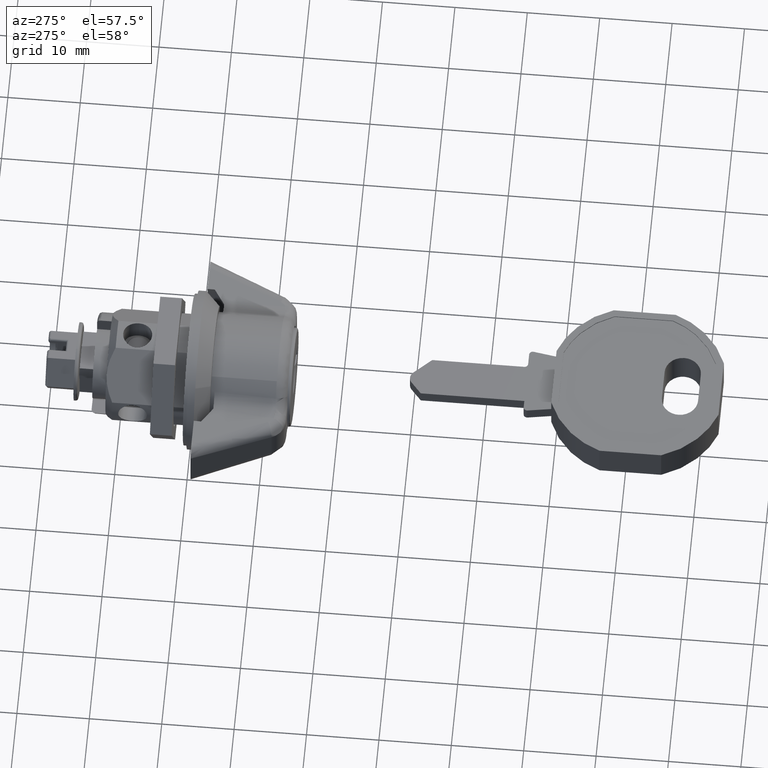
[diagram: clean part render]
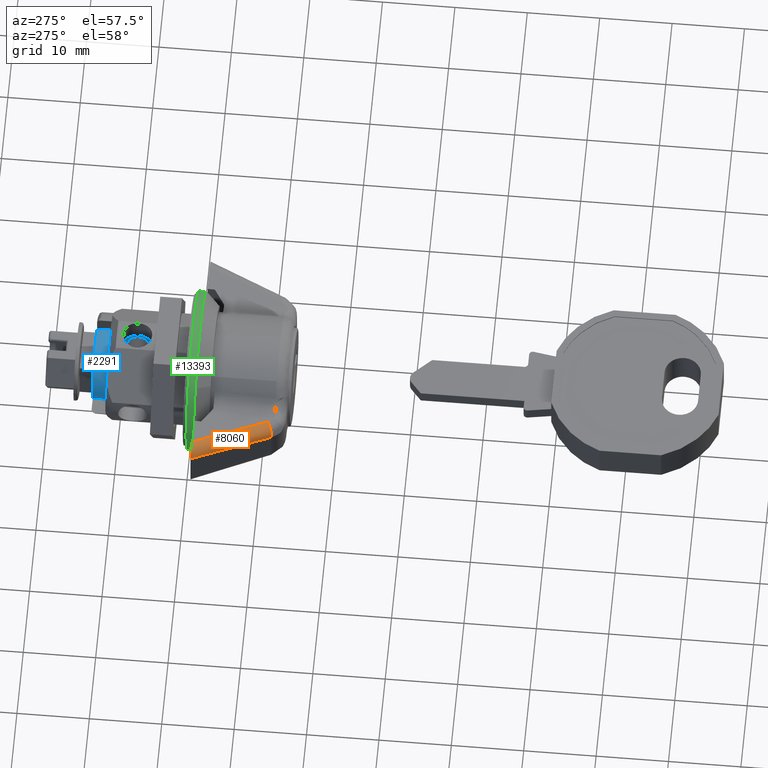
[diagram: same view with three faces highlighted in distinct colors, each labeled with its STEP entity id]
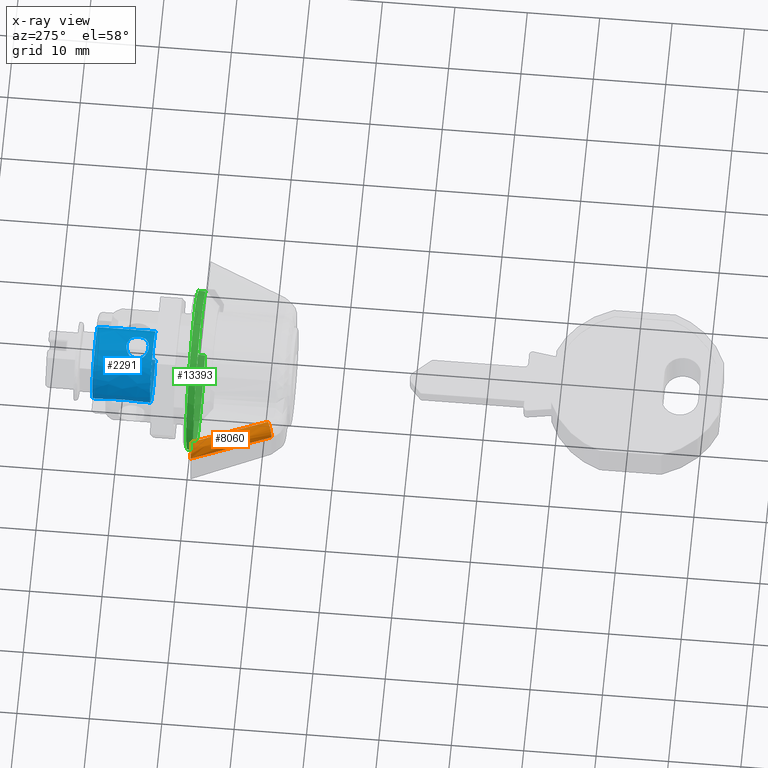
[diagram: x-ray of the same camera — body ghosted, the three highlighted faces saturated]
A machine part, auxiliary view with three faces highlighted in distinct colors.
The next image is the same camera in x-ray (body ghosted, the three faces saturated) — at least one of them is partly hidden behind the body in this view.
Their STEP definitions:

[orange] entity #8060 — the highlighted face is a freeform B-spline surface patch.
#7979=CARTESIAN_POINT('',(-11.183665235683840,9.821166666246279,3.595886481305010));
#7980=VERTEX_POINT('',#7979);
#7981=CARTESIAN_POINT('',(-11.762083190561020,11.286777674290761,1.997144758670520));
#7982=VERTEX_POINT('',#7981);
#7983=CARTESIAN_POINT('',(-11.183665235683840,9.821166666246279,3.595886481305010));
#7984=CARTESIAN_POINT('',(-11.266741171007620,10.011137923160099,3.592826560587628));
#7985=CARTESIAN_POINT('',(-11.383710787275071,10.283995523881890,3.529131590233779));
#7986=CARTESIAN_POINT('',(-11.520116949203180,10.612636578893840,3.339596484802511));
#7987=CARTESIAN_POINT('',(-11.607927909332520,10.830018300909940,3.153349985861394));
#7988=CARTESIAN_POINT('',(-11.684241216827830,11.026724536256680,2.905542830950694));
#7989=CARTESIAN_POINT('',(-11.754130439448740,11.220525311628670,2.527914172347614));
#7990=CARTESIAN_POINT('',(-11.769068784447080,11.283952099144599,2.204365520496538));
#7991=CARTESIAN_POINT('',(-11.762083190561020,11.286777674290761,1.997144758670520));
#7992=B_SPLINE_CURVE_WITH_KNOTS('',3,(#7983,#7984,#7985,#7986,#7987,#7988,#7989,#7990,#7991),.UNSPECIFIED.,.F.,.U.,(4,1,1,1,1,1,4),(0.000000158202903,0.621971021835694,0.894088538189162,1.205091068800267,1.516032652936379,1.865912749101538,2.487883612734395),.UNSPECIFIED.);
#7993=EDGE_CURVE('',#7980,#7982,#7992,.T.);
#8016=CARTESIAN_POINT('',(-11.425749113943910,9.641638852134159,3.584862003369446));
#8017=CARTESIAN_POINT('',(-0.116520896383075,14.594482535604500,4.033640912819842));
#8018=CARTESIAN_POINT('',(-12.133517106246288,11.253568368795866,3.630931069450107));
#8019=CARTESIAN_POINT('',(-0.824288888685452,16.206412052266195,4.079709978900501));
#8020=CARTESIAN_POINT('',(-12.025934632838862,11.166996654419442,1.875281330422414));
#8021=CARTESIAN_POINT('',(-0.716706415278030,16.119840337889769,2.324060239872809));
#8029=(BOUNDED_SURFACE()B_SPLINE_SURFACE(1,2,((#8016,#8018,#8020),(#8017,#8019,#8021)),.UNSPECIFIED.,.F.,.F.,.U.)B_SPLINE_SURFACE_WITH_KNOTS((2,2),(3,3),(0.0,12.354380030553290),(0.0,2.832323646402191),.UNSPECIFIED.)GEOMETRIC_REPRESENTATION_ITEM()RATIONAL_B_SPLINE_SURFACE(((1.0,0.671118480831794,0.996048137487845),(1.0,0.671118480831794,0.996048137487845)))REPRESENTATION_ITEM('')SURFACE());
#8030=CARTESIAN_POINT('',(-1.000000047497460,16.000000759959601,2.424211561412980));
#8031=VERTEX_POINT('',#8030);
#8032=CARTESIAN_POINT('',(-1.000000047497450,14.281073286891360,4.000000189989891));
#8033=VERTEX_POINT('',#8032);
#8034=CARTESIAN_POINT('',(-1.000000047497460,16.000000759959601,2.424211561412980));
#8035=CARTESIAN_POINT('',(-1.000000047497452,16.000000759959459,4.000000189989893));
#8036=CARTESIAN_POINT('',(-1.000000047497452,14.281073286891360,4.000000189989895));
#8044=(BOUNDED_CURVE()B_SPLINE_CURVE(2,(#8034,#8035,#8036),.UNSPECIFIED.,.F.,.U.)CURVE()GEOMETRIC_REPRESENTATION_ITEM()QUASI_UNIFORM_CURVE()RATIONAL_B_SPLINE_CURVE((1.0,0.712708436266373,1.0))REPRESENTATION_ITEM(''));
#8045=EDGE_CURVE('',#8031,#8033,#8044,.T.);
#8046=ORIENTED_EDGE('',*,*,#8045,.F.);
#8047=CARTESIAN_POINT('',(-11.762083190561020,11.286777674290761,1.997144758670520));
#8048=CARTESIAN_POINT('',(-1.000000047497460,16.000000759959601,2.424211561412980));
#8049=QUASI_UNIFORM_CURVE('',1,(#8047,#8048),.UNSPECIFIED.,.F.,.U.);
#8050=EDGE_CURVE('',#7982,#8031,#8049,.T.);
#8051=ORIENTED_EDGE('',*,*,#8050,.F.);
#8052=ORIENTED_EDGE('',*,*,#7993,.F.);
#8053=CARTESIAN_POINT('',(-1.000000047497450,14.281073286891360,4.000000189989891));
#8054=CARTESIAN_POINT('',(-11.183665235683840,9.821166666246279,3.595886481305010));
#8055=QUASI_UNIFORM_CURVE('',1,(#8053,#8054),.UNSPECIFIED.,.F.,.U.);
#8056=EDGE_CURVE('',#8033,#7980,#8055,.T.);
#8057=ORIENTED_EDGE('',*,*,#8056,.F.);
#8058=EDGE_LOOP('',(#8046,#8051,#8052,#8057));
#8059=FACE_OUTER_BOUND('',#8058,.T.);
#8060=ADVANCED_FACE('',(#8059),#8029,.T.);

[blue] entity #2291 — the highlighted face is a freeform B-spline surface patch.
#1260=CARTESIAN_POINT('',(6.306306991833534,-0.749260837802013,4.867671208664538));
#1261=VERTEX_POINT('',#1260);
#1267=CARTESIAN_POINT('',(6.752965717756890,-1.471606265276386,4.700000000000000));
#1268=VERTEX_POINT('',#1267);
#1269=CARTESIAN_POINT('',(6.752965717756890,-1.471606265276386,4.700000000000000));
#1270=CARTESIAN_POINT('',(6.658988565765238,-1.375251441683344,4.730169191837251));
#1271=CARTESIAN_POINT('',(6.577387759292848,-1.270290086274373,4.759769838746648));
#1272=CARTESIAN_POINT('',(6.470486094922504,-1.101357364556316,4.800623423266615));
#1273=CARTESIAN_POINT('',(6.437486076383927,-1.043099641148262,4.813661638506937));
#1274=CARTESIAN_POINT('',(6.376719369867122,-0.922618643012104,4.838198819667565));
#1275=CARTESIAN_POINT('',(6.349005869118376,-0.860396968225078,4.849679521529549));
#1276=CARTESIAN_POINT('',(6.318223410626710,-0.781487361113824,4.862628099728564));
#1277=CARTESIAN_POINT('',(6.312168504258932,-0.765406229973195,4.865185791075035));
#1278=CARTESIAN_POINT('',(6.306306991833534,-0.749260837802013,4.867671208664538));
#1279=B_SPLINE_CURVE_WITH_KNOTS('',3,(#1269,#1270,#1271,#1272,#1273,#1274,#1275,#1276,#1277,#1278),.UNSPECIFIED.,.F.,.U.,(4,2,2,2,4),(0.0,0.125000000000000,0.187500000000000,0.250000000000000,0.265917130112417),.UNSPECIFIED.);
#1280=EDGE_CURVE('',#1268,#1261,#1279,.T.);
#1282=CARTESIAN_POINT('',(8.647034722851529,-1.471606265276386,4.700000000000000));
#1283=VERTEX_POINT('',#1282);
#1294=CARTESIAN_POINT('',(9.093693513346835,0.749261314784638,4.867671135328719));
#1295=VERTEX_POINT('',#1294);
#1296=CARTESIAN_POINT('',(9.093693513346835,0.749261314784638,4.867671135328719));
#1297=CARTESIAN_POINT('',(9.133863759482995,0.638613998182504,4.884704430850198));
#1298=CARTESIAN_POINT('',(9.164951025658560,0.524948590913087,4.898343300071508));
#1299=CARTESIAN_POINT('',(9.193230657995320,0.374745352996912,4.910835513892305));
#1300=CARTESIAN_POINT('',(9.198773049228747,0.341041545232073,4.913294424818516));
#1301=CARTESIAN_POINT('',(9.208315691703506,0.273109538108605,4.917538314888221));
#1302=CARTESIAN_POINT('',(9.212310623673323,0.238873441533852,4.919320939319647));
#1303=CARTESIAN_POINT('',(9.221838580833150,0.136561839845545,4.923578560741460));
#1304=CARTESIAN_POINT('',(9.224982641803319,0.068487116221322,4.924991482365425));
#1305=CARTESIAN_POINT('',(9.225032794052428,-0.135347320387991,4.925014066964783));
#1306=CARTESIAN_POINT('',(9.212644922722733,-0.270720449740360,4.919414066283357));
#1307=CARTESIAN_POINT('',(9.174818085669852,-0.472985851736623,4.902701280421549));
#1308=CARTESIAN_POINT('',(9.159111052579924,-0.539481012879765,4.895802378511427));
#1309=CARTESIAN_POINT('',(9.121938844129128,-0.669661004700747,4.879700368412383));
#1310=CARTESIAN_POINT('',(9.100442222864901,-0.733518067374230,4.870482710529963));
#1311=CARTESIAN_POINT('',(9.051660202474839,-0.858815032659847,4.849957539497495));
#1312=CARTESIAN_POINT('',(9.024376211684537,-0.920255338606349,4.838649319562661));
#1313=CARTESIAN_POINT('',(8.963826649955060,-1.040685557501927,4.814184401792642));
#1314=CARTESIAN_POINT('',(8.930459827519439,-1.099779163540217,4.800991078759340));
#1315=CARTESIAN_POINT('',(8.822911755218746,-1.269985968318285,4.759872539932546));
#1316=CARTESIAN_POINT('',(8.740976742339687,-1.375287716975266,4.730158020439851));
#1317=CARTESIAN_POINT('',(8.647034722851529,-1.471606265276386,4.700000000000000));
#1318=B_SPLINE_CURVE_WITH_KNOTS('',3,(#1296,#1297,#1298,#1299,#1300,#1301,#1302,#1303,#1304,#1305,#1306,#1307,#1308,#1309,#1310,#1311,#1312,#1313,#1314,#1315,#1316,#1317),.UNSPECIFIED.,.F.,.U.,(4,2,2,2,2,2,2,2,2,2,4),(0.265916900169190,0.375000000000001,0.406250000000001,0.437500000000001,0.500000000000001,0.625000000000001,0.687500000000001,0.750000000000000,0.812500000000000,0.875000000000000,1.0),.UNSPECIFIED.);
#1319=EDGE_CURVE('',#1295,#1283,#1318,.T.);
#1359=CARTESIAN_POINT('',(8.647035410243539,1.471606265276386,4.700000000000000));
#1360=VERTEX_POINT('',#1359);
#1361=CARTESIAN_POINT('',(8.647035410243539,1.471606265276386,4.700000000000000));
#1362=CARTESIAN_POINT('',(8.741012501158787,1.375251388216102,4.730169208592995));
#1363=CARTESIAN_POINT('',(8.822613250020007,1.270289990666160,4.759769865130852));
#1364=CARTESIAN_POINT('',(8.929514827970237,1.101357217609038,4.800623457238894));
#1365=CARTESIAN_POINT('',(8.962514817752922,1.043099479138107,4.813661673838289));
#1366=CARTESIAN_POINT('',(9.023281466398879,0.922618454757750,4.838198855805157));
#1367=CARTESIAN_POINT('',(9.050994939371877,0.860396765946261,4.849679557649401));
#1368=CARTESIAN_POINT('',(9.081777272572337,0.781487375390028,4.862628096752408));
#1369=CARTESIAN_POINT('',(9.087832087141791,0.765406474606986,4.865185751887775));
#1370=CARTESIAN_POINT('',(9.093693513346835,0.749261314784638,4.867671135328719));
#1371=B_SPLINE_CURVE_WITH_KNOTS('',3,(#1361,#1362,#1363,#1364,#1365,#1366,#1367,#1368,#1369,#1370),.UNSPECIFIED.,.F.,.U.,(4,2,2,2,4),(0.0,0.125000000000001,0.187500000000001,0.250000000000001,0.265916900169190),.UNSPECIFIED.);
#1372=EDGE_CURVE('',#1360,#1295,#1371,.T.);
#1374=CARTESIAN_POINT('',(6.752965030364870,1.471606265276386,4.700000000000000));
#1375=VERTEX_POINT('',#1374);
#1386=CARTESIAN_POINT('',(6.306306991833534,-0.749260837802013,4.867671208664538));
#1387=CARTESIAN_POINT('',(6.266136819803631,-0.638613760553569,4.884704456259689));
#1388=CARTESIAN_POINT('',(6.235049588988702,-0.524948599040333,4.898343293068140));
#1389=CARTESIAN_POINT('',(6.206769938774295,-0.374745615315531,4.910835493782122));
#1390=CARTESIAN_POINT('',(6.201227533200591,-0.341041808817800,4.913294406438319));
#1391=CARTESIAN_POINT('',(6.191684861980300,-0.273109803128769,4.917538300088129));
#1392=CARTESIAN_POINT('',(6.187689915991339,-0.238873709835353,4.919320926196873));
#1393=CARTESIAN_POINT('',(6.178161916635447,-0.136562116443582,4.923578552923364));
#1394=CARTESIAN_POINT('',(6.175017827345021,-0.068487395934579,4.924991478396237));
#1395=CARTESIAN_POINT('',(6.174967590090727,0.135347038371752,4.925014074612275));
#1396=CARTESIAN_POINT('',(6.187355404696616,0.270720175518495,4.919414081780944));
#1397=CARTESIAN_POINT('',(6.225182158515379,0.472985603476948,4.902701304442117));
#1398=CARTESIAN_POINT('',(6.240889161853628,0.539480764266011,4.895802405951592));
#1399=CARTESIAN_POINT('',(6.278061313281383,0.669660769898010,4.879700400686104));
#1400=CARTESIAN_POINT('',(6.299557906331976,0.733517841810553,4.870482744612272));
#1401=CARTESIAN_POINT('',(6.348339870943508,0.858814830082952,4.849957575486744));
#1402=CARTESIAN_POINT('',(6.375623834169646,0.920255149776157,4.838649355652039));
#1403=CARTESIAN_POINT('',(6.436173341330282,1.040685400746522,4.814184435861164));
#1404=CARTESIAN_POINT('',(6.469540134715795,1.099779021410007,4.800991111493905));
#1405=CARTESIAN_POINT('',(6.577088118040456,1.269985873841761,4.759872565913369));
#1406=CARTESIAN_POINT('',(6.659023071997948,1.375287663604107,4.730158037145984));
#1407=CARTESIAN_POINT('',(6.752965030364870,1.471606265276386,4.700000000000000));
#1408=B_SPLINE_CURVE_WITH_KNOTS('',3,(#1386,#1387,#1388,#1389,#1390,#1391,#1392,#1393,#1394,#1395,#1396,#1397,#1398,#1399,#1400,#1401,#1402,#1403,#1404,#1405,#1406,#1407),.UNSPECIFIED.,.F.,.U.,(4,2,2,2,2,2,2,2,2,2,4),(0.265917130112417,0.375000000000000,0.406250000000000,0.437500000000000,0.500000000000000,0.625000000000000,0.687500000000000,0.750000000000000,0.812500000000000,0.874999999999999,1.0),.UNSPECIFIED.);
#1409=EDGE_CURVE('',#1261,#1375,#1408,.T.);
#2114=CARTESIAN_POINT('',(13.749999857507701,-3.920032055517127,2.981438190491097));
#2115=CARTESIAN_POINT('',(13.749999857507694,-3.747329776428863,3.208509297397181));
#2116=CARTESIAN_POINT('',(13.749999857507699,-3.549564002204424,3.414120735160851));
#2117=CARTESIAN_POINT('',(13.749999857507698,-0.135443267043687,6.963684737365274));
#2118=CARTESIAN_POINT('',(13.749999857507699,3.414120735160737,3.549564002204537));
#2119=CARTESIAN_POINT('',(13.749999857507698,6.963684737365160,0.135443267043800));
#2120=CARTESIAN_POINT('',(13.749999857507699,3.549564002204424,-3.414120735160623));
#2121=CARTESIAN_POINT('',(13.749999857507698,0.135443267043687,-6.963684737365046));
#2122=CARTESIAN_POINT('',(13.749999857507699,-3.414120735160737,-3.549564002204310));
#2123=CARTESIAN_POINT('',(5.344999857507700,-3.920032055517127,2.981438190491097));
#2124=CARTESIAN_POINT('',(5.344999857507700,-3.747329776428863,3.208509297397181));
#2125=CARTESIAN_POINT('',(5.344999857507700,-3.549564002204424,3.414120735160851));
#2126=CARTESIAN_POINT('',(5.344999857507699,-0.135443267043687,6.963684737365274));
#2127=CARTESIAN_POINT('',(5.344999857507700,3.414120735160737,3.549564002204537));
#2128=CARTESIAN_POINT('',(5.344999857507699,6.963684737365160,0.135443267043800));
#2129=CARTESIAN_POINT('',(5.344999857507700,3.549564002204424,-3.414120735160623));
#2130=CARTESIAN_POINT('',(5.344999857507699,0.135443267043687,-6.963684737365046));
#2131=CARTESIAN_POINT('',(5.344999857507700,-3.414120735160737,-3.549564002204310));
#2139=(BOUNDED_SURFACE()B_SPLINE_SURFACE(2,1,((#2114,#2123),(#2115,#2124),(#2116,#2125),(#2117,#2126),(#2118,#2127),(#2119,#2128),(#2120,#2129),(#2121,#2130),(#2122,#2131)),.UNSPECIFIED.,.F.,.F.,.U.)B_SPLINE_SURFACE_WITH_KNOTS((3,2,2,2,3),(2,2),(0.0,0.652800574299997,8.812807753049965,16.972814931799942,25.132822110549899),(0.0,8.404999999999999),.UNSPECIFIED.)GEOMETRIC_REPRESENTATION_ITEM()RATIONAL_B_SPLINE_SURFACE(((0.956886118190660,0.956886118190660),(0.976568542494924,0.976568542494924),(1.0,1.0),(0.707106781186548,0.707106781186548),(1.0,1.0),(0.707106781186548,0.707106781186548),(1.0,1.0),(0.707106781186548,0.707106781186548),(1.0,1.0)))REPRESENTATION_ITEM('')SURFACE());
#2140=CARTESIAN_POINT('',(5.549999857505686,-3.920032261623758,2.981438296874213));
#2141=VERTEX_POINT('',#2140);
#2142=CARTESIAN_POINT('',(5.549999857507700,0.0,4.925000000000114));
#2143=VERTEX_POINT('',#2142);
#2144=CARTESIAN_POINT('',(5.549999857505686,-3.920032261623758,2.981438296874213));
#2145=CARTESIAN_POINT('',(5.549999857505839,-3.619998518034168,3.376292267116646));
#2146=CARTESIAN_POINT('',(5.549999857506133,-3.053692236543987,3.924400422090179));
#2147=CARTESIAN_POINT('',(5.549999857506667,-2.012052227050028,4.537808728354754));
#2148=CARTESIAN_POINT('',(5.549999857507173,-1.039022034523547,4.856429684457920));
#2149=CARTESIAN_POINT('',(5.549999857507554,-0.306970943691071,4.925017623243410));
#2150=CARTESIAN_POINT('',(5.549999857507700,0.0,4.925000000000114));
#2151=B_SPLINE_CURVE_WITH_KNOTS('',3,(#2144,#2145,#2146,#2147,#2148,#2149,#2150),.UNSPECIFIED.,.F.,.U.,(4,1,1,1,4),(0.000000031347305,1.487666520005475,2.337747081001201,3.612905265027535,4.533836606199775),.UNSPECIFIED.);
#2152=EDGE_CURVE('',#2141,#2143,#2151,.T.);
#2153=ORIENTED_EDGE('',*,*,#2152,.F.);
#2154=CARTESIAN_POINT('',(13.549999857507700,-3.920032261321458,2.981438297271681));
#2155=VERTEX_POINT('',#2154);
#2156=CARTESIAN_POINT('',(13.549999857507700,-3.920032261321458,2.981438297271681));
#2157=CARTESIAN_POINT('',(5.549999857505686,-3.920032261623758,2.981438296874213));
#2158=QUASI_UNIFORM_CURVE('',1,(#2156,#2157),.UNSPECIFIED.,.F.,.U.);
#2159=EDGE_CURVE('',#2155,#2141,#2158,.T.);
#2160=ORIENTED_EDGE('',*,*,#2159,.F.);
#2161=CARTESIAN_POINT('',(13.549999857507700,0.0,4.925000000000114));
#2162=VERTEX_POINT('',#2161);
#2163=CARTESIAN_POINT('',(13.549999857507700,-3.920032261321458,2.981438297271681));
#2164=CARTESIAN_POINT('',(13.549999857507700,-3.648536429030051,3.338649049648375));
#2165=CARTESIAN_POINT('',(13.549999857507711,-3.057634199021310,3.927469135462543));
#2166=CARTESIAN_POINT('',(13.549999857507689,-2.135904626156428,4.470224043611909));
#2167=CARTESIAN_POINT('',(13.549999857507700,-1.133381714484789,4.830750040767845));
#2168=CARTESIAN_POINT('',(13.549999857507659,-0.448678353830289,4.925155776878783));
#2169=CARTESIAN_POINT('',(13.549999857507700,0.0,4.925000000000114));
#2170=B_SPLINE_CURVE_WITH_KNOTS('',3,(#2163,#2164,#2165,#2166,#2167,#2168,#2169),.UNSPECIFIED.,.F.,.U.,(4,1,1,1,4),(0.000000031347484,1.345986977453193,2.479424144618565,3.187849659607213,4.533836605700390),.UNSPECIFIED.);
#2171=EDGE_CURVE('',#2155,#2162,#2170,.T.);
#2172=ORIENTED_EDGE('',*,*,#2171,.T.);
#2173=CARTESIAN_POINT('',(13.549999857507700,4.924999999999908,-0.000000948242461));
#2174=VERTEX_POINT('',#2173);
#2175=CARTESIAN_POINT('',(13.549999857507700,0.0,4.925000000000114));
#2176=CARTESIAN_POINT('',(13.549999857507700,0.362632699493226,4.925069880984350));
#2177=CARTESIAN_POINT('',(13.549999857507700,0.987128236146806,4.855677874998460));
#2178=CARTESIAN_POINT('',(13.549999857507689,2.010303044712856,4.538575816222698));
#2179=CARTESIAN_POINT('',(13.549999857507720,2.877045541477332,4.047570975895024));
#2180=CARTESIAN_POINT('',(13.549999857507601,3.551176798121064,3.436374452219003));
#2181=CARTESIAN_POINT('',(13.549999857507730,4.067037496504767,2.815673938246903));
#2182=CARTESIAN_POINT('',(13.549999857507681,4.469014038086670,2.135606531631689));
#2183=CARTESIAN_POINT('',(13.549999857507760,4.829114882703490,1.148252631996489));
#2184=CARTESIAN_POINT('',(13.549999857507631,4.925170557838312,0.443236107628979));
#2185=CARTESIAN_POINT('',(13.549999857507700,4.924999999999908,-0.000000948242461));
#2186=B_SPLINE_CURVE_WITH_KNOTS('',3,(#2175,#2176,#2177,#2178,#2179,#2180,#2181,#2182,#2183,#2184,#2185),.UNSPECIFIED.,.F.,.U.,(4,1,1,1,1,1,1,1,4),(0.000000093245014,1.087889894596530,1.873616193653565,3.203279873748655,4.049411143938515,4.593358166106540,5.620844688427701,6.406569878618371,7.736220985113074),.UNSPECIFIED.);
#2187=EDGE_CURVE('',#2162,#2174,#2186,.T.);
#2188=ORIENTED_EDGE('',*,*,#2187,.T.);
#2189=CARTESIAN_POINT('',(13.549999857507700,0.0,-4.924999999999886));
#2190=VERTEX_POINT('',#2189);
#2191=CARTESIAN_POINT('',(13.549999857507700,4.924999999999908,-0.000000948242461));
#2192=CARTESIAN_POINT('',(13.549999857507711,4.925057925380743,-0.382777585105638));
#2193=CARTESIAN_POINT('',(13.549999857507700,4.828294860018777,-1.208780748019852));
#2194=CARTESIAN_POINT('',(13.549999857507689,4.425918403924637,-2.252025034091269));
#2195=CARTESIAN_POINT('',(13.549999857507711,3.841603366525938,-3.126234124098681));
#2196=CARTESIAN_POINT('',(13.549999857507821,3.106542902057631,-3.879782440664315));
#2197=CARTESIAN_POINT('',(13.549999857507400,2.196217726576446,-4.456199914006167));
#2198=CARTESIAN_POINT('',(13.549999857507860,1.107998939068474,-4.837973449199784));
#2199=CARTESIAN_POINT('',(13.549999857508050,0.402929850210773,-4.925085783666709));
#2200=CARTESIAN_POINT('',(13.549999857507700,0.0,-4.924999999999886));
#2201=B_SPLINE_CURVE_WITH_KNOTS('',3,(#2191,#2192,#2193,#2194,#2195,#2196,#2197,#2198,#2199,#2200),.UNSPECIFIED.,.F.,.U.,(4,1,1,1,1,1,1,4),(0.000000093570681,1.148339010439855,2.478018936987965,3.324182561869809,4.291183152162761,5.620843911566904,6.527442979996657,7.736219916216026),.UNSPECIFIED.);
#2202=EDGE_CURVE('',#2174,#2190,#2201,.T.);
#2203=ORIENTED_EDGE('',*,*,#2202,.T.);
#2204=CARTESIAN_POINT('',(13.549999857507700,-3.414120626121433,-3.549563778411393));
#2205=VERTEX_POINT('',#2204);
#2206=CARTESIAN_POINT('',(13.549999857507700,0.0,-4.924999999999886));
#2207=CARTESIAN_POINT('',(13.549999857507700,-0.334003296280858,-4.925024671645713));
#2208=CARTESIAN_POINT('',(13.549999857507700,-1.080610805463045,-4.848822725137048));
#2209=CARTESIAN_POINT('',(13.549999857507711,-2.280013269756466,-4.439303928104020));
#2210=CARTESIAN_POINT('',(13.549999857507689,-3.046089750930593,-3.903849601096403));
#2211=CARTESIAN_POINT('',(13.549999857507700,-3.414120626121433,-3.549563778411393));
#2212=B_SPLINE_CURVE_WITH_KNOTS('',3,(#2206,#2207,#2208,#2209,#2210,#2211),.UNSPECIFIED.,.F.,.U.,(4,1,1,4),(0.000000023511429,1.002025855902229,2.239815538925797,3.772329562738402),.UNSPECIFIED.);
#2213=EDGE_CURVE('',#2190,#2205,#2212,.T.);
#2214=ORIENTED_EDGE('',*,*,#2213,.T.);
#2215=CARTESIAN_POINT('',(5.549999857509301,-3.414120626801890,-3.549563777756899));
#2216=VERTEX_POINT('',#2215);
#2217=CARTESIAN_POINT('',(13.549999857507700,-3.414120626121433,-3.549563778411393));
#2218=CARTESIAN_POINT('',(5.549999857509301,-3.414120626801890,-3.549563777756899));
#2219=QUASI_UNIFORM_CURVE('',1,(#2217,#2218),.UNSPECIFIED.,.F.,.U.);
#2220=EDGE_CURVE('',#2205,#2216,#2219,.T.);
#2221=ORIENTED_EDGE('',*,*,#2220,.T.);
#2222=CARTESIAN_POINT('',(5.549999857507700,0.0,-4.924999999999886));
#2223=VERTEX_POINT('',#2222);
#2224=CARTESIAN_POINT('',(5.549999857507700,0.0,-4.924999999999886));
#2225=CARTESIAN_POINT('',(5.549999857507858,-0.334003449424928,-4.925024719031995));
#2226=CARTESIAN_POINT('',(5.549999857508210,-1.080610762332728,-4.848822705397518));
#2227=CARTESIAN_POINT('',(5.549999857508752,-2.280013171548496,-4.439303987043882));
#2228=CARTESIAN_POINT('',(5.549999857509150,-3.046089855971544,-3.903849605812125));
#2229=CARTESIAN_POINT('',(5.549999857509301,-3.414120626801890,-3.549563777756899));
#2230=B_SPLINE_CURVE_WITH_KNOTS('',3,(#2224,#2225,#2226,#2227,#2228,#2229),.UNSPECIFIED.,.F.,.U.,(4,1,1,4),(0.000000023511737,1.002025856153271,2.239815539486560,3.772329563682550),.UNSPECIFIED.);
#2231=EDGE_CURVE('',#2223,#2216,#2230,.T.);
#2232=ORIENTED_EDGE('',*,*,#2231,.F.);
#2233=CARTESIAN_POINT('',(5.549999857507700,4.924999999999908,-0.000000948242461));
#2234=VERTEX_POINT('',#2233);
#2235=CARTESIAN_POINT('',(5.549999857507700,4.924999999999908,-0.000000948242461));
#2236=CARTESIAN_POINT('',(5.549999857507706,4.925057314534117,-0.382777052823482));
#2237=CARTESIAN_POINT('',(5.549999857507695,4.828298351416004,-1.208783809800933));
#2238=CARTESIAN_POINT('',(5.549999857507706,4.425908004096002,-2.252015894261406));
#2239=CARTESIAN_POINT('',(5.549999857507669,3.819167206691947,-3.159883263679643));
#2240=CARTESIAN_POINT('',(5.549999857507812,3.116903179744396,-3.862203064832688));
#2241=CARTESIAN_POINT('',(5.549999857507548,2.281602246033580,-4.398312142876753));
#2242=CARTESIAN_POINT('',(5.549999857507772,1.248954993877483,-4.811299367307628));
#2243=CARTESIAN_POINT('',(5.549999857507705,0.483540979964194,-4.925219819622512));
#2244=CARTESIAN_POINT('',(5.549999857507700,0.0,-4.924999999999886));
#2245=B_SPLINE_CURVE_WITH_KNOTS('',3,(#2235,#2236,#2237,#2238,#2239,#2240,#2241,#2242,#2243,#2244),.UNSPECIFIED.,.F.,.U.,(4,1,1,1,1,1,1,4),(0.000000093570681,1.148339010439855,2.478018936987965,3.324182561869809,4.412037090644546,5.439523438174742,6.285680989023792,7.736219916216026),.UNSPECIFIED.);
#2246=EDGE_CURVE('',#2234,#2223,#2245,.T.);
#2247=ORIENTED_EDGE('',*,*,#2246,.F.);
#2248=CARTESIAN_POINT('',(5.549999857507700,0.0,4.925000000000114));
#2249=CARTESIAN_POINT('',(5.549999857507712,0.322341967850470,4.925039978894663));
#2250=CARTESIAN_POINT('',(5.549999857507684,0.946858882231068,4.863467258806073));
#2251=CARTESIAN_POINT('',(5.549999857507723,1.839101592688998,4.598804516087136));
#2252=CARTESIAN_POINT('',(5.549999857507665,2.541683312687755,4.239688893649536));
#2253=CARTESIAN_POINT('',(5.549999857507718,3.280865972806422,3.712399349997360));
#2254=CARTESIAN_POINT('',(5.549999857507696,3.943426423239532,3.024981036681986));
#2255=CARTESIAN_POINT('',(5.549999857507668,4.469002627384648,2.135594301370090));
#2256=CARTESIAN_POINT('',(5.549999857507789,4.829115473277706,1.148253055016048));
#2257=CARTESIAN_POINT('',(5.549999857507569,4.925170345709310,0.443235972420870));
#2258=CARTESIAN_POINT('',(5.549999857507700,4.924999999999908,-0.000000948242461));
#2259=B_SPLINE_CURVE_WITH_KNOTS('',3,(#2248,#2249,#2250,#2251,#2252,#2253,#2254,#2255,#2256,#2257,#2258),.UNSPECIFIED.,.F.,.U.,(4,1,1,1,1,1,1,1,4),(0.000000093245014,0.967023159235106,1.873616193653565,2.780205844689957,3.324183020769156,4.593358166106540,5.620844688427701,6.406569878618371,7.736220985113074),.UNSPECIFIED.);
#2260=EDGE_CURVE('',#2143,#2234,#2259,.T.);
#2261=ORIENTED_EDGE('',*,*,#2260,.F.);
#2262=EDGE_LOOP('',(#2153,#2160,#2172,#2188,#2203,#2214,#2221,#2232,#2247,#2261));
#2263=FACE_OUTER_BOUND('',#2262,.T.);
#2264=CARTESIAN_POINT('',(8.647035410243539,1.471606265276386,4.700000000000000));
#2265=CARTESIAN_POINT('',(8.457091110818721,1.595567108840861,4.657179953040445));
#2266=CARTESIAN_POINT('',(8.100987263414394,1.735574135695635,4.608817040267320));
#2267=CARTESIAN_POINT('',(7.562219171752570,1.764406386947360,4.598857456925943));
#2268=CARTESIAN_POINT('',(7.127682078413493,1.673963025430087,4.630099491716847));
#2269=CARTESIAN_POINT('',(6.865266129189404,1.544708599420621,4.674748111654440));
#2270=CARTESIAN_POINT('',(6.752965030364870,1.471606265276386,4.700000000000000));
#2271=B_SPLINE_CURVE_WITH_KNOTS('',3,(#2264,#2265,#2266,#2267,#2268,#2269,#2270),.UNSPECIFIED.,.F.,.U.,(4,1,1,1,4),(0.000000098611366,0.692289958510925,1.132802950644856,1.604836771923980,2.013909882297535),.UNSPECIFIED.);
#2272=EDGE_CURVE('',#1360,#1375,#2271,.T.);
#2273=ORIENTED_EDGE('',*,*,#2272,.F.);
#2274=ORIENTED_EDGE('',*,*,#1372,.T.);
#2275=ORIENTED_EDGE('',*,*,#1319,.T.);
#2276=CARTESIAN_POINT('',(6.752965717756890,-1.471606265276386,4.700000000000000));
#2277=CARTESIAN_POINT('',(6.882533586480346,-1.555976536654151,4.670854421283812));
#2278=CARTESIAN_POINT('',(7.148160413945383,-1.680779029024982,4.627741594858449));
#2279=CARTESIAN_POINT('',(7.552266138548023,-1.757324372548837,4.601299125270522));
#2280=CARTESIAN_POINT('',(7.942298919843967,-1.746914388130108,4.604895238159041));
#2281=CARTESIAN_POINT('',(8.310488825254518,-1.656427736267716,4.636153710978372));
#2282=CARTESIAN_POINT('',(8.543370285006706,-1.539078682825335,4.676691758545603));
#2283=CARTESIAN_POINT('',(8.647034722851529,-1.471606265276386,4.700000000000000));
#2284=B_SPLINE_CURVE_WITH_KNOTS('',3,(#2276,#2277,#2278,#2279,#2280,#2281,#2282,#2283),.UNSPECIFIED.,.F.,.U.,(4,1,1,1,1,4),(0.000000098602998,0.472007070219644,0.881103990825452,1.227206663396149,1.636303488438525,2.013902937323070),.UNSPECIFIED.);
#2285=EDGE_CURVE('',#1268,#1283,#2284,.T.);
#2286=ORIENTED_EDGE('',*,*,#2285,.F.);
#2287=ORIENTED_EDGE('',*,*,#1280,.T.);
#2288=ORIENTED_EDGE('',*,*,#1409,.T.);
#2289=EDGE_LOOP('',(#2273,#2274,#2275,#2286,#2287,#2288));
#2290=FACE_BOUND('',#2289,.T.);
#2291=ADVANCED_FACE('',(#2263,#2290),#2139,.T.);

[green] entity #13393 — the highlighted face is a freeform B-spline surface patch.
#13216=CARTESIAN_POINT('',(0.025000001187435,-8.399112471281631,7.103162759584477));
#13217=CARTESIAN_POINT('',(0.025000001187435,-8.195823004827449,7.343541750009779));
#13218=CARTESIAN_POINT('',(0.025000001187435,-7.979118460123033,7.571900692277353));
#13219=CARTESIAN_POINT('',(0.025000001187435,-0.407217767845680,15.551019152400384));
#13220=CARTESIAN_POINT('',(0.025000001187435,7.571900692277353,7.979118460123033));
#13221=CARTESIAN_POINT('',(0.025000001187435,15.551019152400384,0.407217767845680));
#13222=CARTESIAN_POINT('',(0.025000001187435,7.979118460123033,-7.571900692277353));
#13223=CARTESIAN_POINT('',(0.025000001187435,0.407217767845680,-15.551019152400384));
#13224=CARTESIAN_POINT('',(0.025000001187435,-7.571900692277353,-7.979118460123033));
#13225=CARTESIAN_POINT('',(-1.025625048714515,-8.399112471281631,7.103162759584477));
#13226=CARTESIAN_POINT('',(-1.025625048714515,-8.195823004827449,7.343541750009779));
#13227=CARTESIAN_POINT('',(-1.025625048714515,-7.979118460123033,7.571900692277353));
#13228=CARTESIAN_POINT('',(-1.025625048714515,-0.407217767845680,15.551019152400384));
#13229=CARTESIAN_POINT('',(-1.025625048714515,7.571900692277353,7.979118460123033));
#13230=CARTESIAN_POINT('',(-1.025625048714515,15.551019152400384,0.407217767845680));
#13231=CARTESIAN_POINT('',(-1.025625048714515,7.979118460123033,-7.571900692277353));
#13232=CARTESIAN_POINT('',(-1.025625048714515,0.407217767845680,-15.551019152400384));
#13233=CARTESIAN_POINT('',(-1.025625048714515,-7.571900692277353,-7.979118460123033));
#13241=(BOUNDED_SURFACE()B_SPLINE_SURFACE(2,1,((#13216,#13225),(#13217,#13226),(#13218,#13227),(#13219,#13228),(#13220,#13229),(#13221,#13230),(#13222,#13231),(#13223,#13232),(#13224,#13233)),.UNSPECIFIED.,.F.,.F.,.U.)B_SPLINE_SURFACE_WITH_KNOTS((3,2,2,2,3),(2,2),(0.0,0.729015904403053,18.954413514479349,37.179811124555648,55.405208734631941),(0.0,1.0),.UNSPECIFIED.)GEOMETRIC_REPRESENTATION_ITEM()RATIONAL_B_SPLINE_SURFACE(((0.977505800795127,0.977505800795127),(0.988284271247462,0.988284271247462),(1.0,1.0),(0.707106781186548,0.707106781186548),(1.0,1.0),(0.707106781186548,0.707106781186548),(1.0,1.0),(0.707106781186548,0.707106781186548),(1.0,1.0)))REPRESENTATION_ITEM('')SURFACE());
#13242=CARTESIAN_POINT('',(-1.000000047500504,-8.399112724170363,7.103162953249269));
#13243=VERTEX_POINT('',#13242);
#13244=CARTESIAN_POINT('',(-1.000000047497394,0.0,11.000000522472099));
#13245=VERTEX_POINT('',#13244);
#13246=CARTESIAN_POINT('',(-1.000000047500504,-8.399112724170363,7.103162953249269));
#13247=CARTESIAN_POINT('',(-1.000000047500290,-7.836780517741050,7.768428487203052));
#13248=CARTESIAN_POINT('',(-1.000000047499933,-6.827940859372434,8.707792650409576));
#13249=CARTESIAN_POINT('',(-1.000000047499302,-5.182895495354818,9.746849740411406));
#13250=CARTESIAN_POINT('',(-1.000000047498811,-3.813702817916049,10.354068452674360));
#13251=CARTESIAN_POINT('',(-1.000000047498151,-2.065604069849111,10.859961115099919));
#13252=CARTESIAN_POINT('',(-1.000000047497700,-0.821306320951637,11.000153533182001));
#13253=CARTESIAN_POINT('',(-1.000000047497394,0.0,11.000000522472099));
#13254=B_SPLINE_CURVE_WITH_KNOTS('',3,(#13246,#13247,#13248,#13249,#13250,#13251,#13252,#13253),.UNSPECIFIED.,.F.,.U.,(4,1,1,1,1,4),(0.000000019335522,2.613198568686461,4.106464725707791,5.823692557052628,7.092964548806465,9.556836803140508),.UNSPECIFIED.);
#13255=EDGE_CURVE('',#13243,#13245,#13254,.T.);
#13256=ORIENTED_EDGE('',*,*,#13255,.F.);
#13257=CARTESIAN_POINT('',(-2.129571E-017,-8.399112724035124,7.103162953409182));
#13258=VERTEX_POINT('',#13257);
#13259=CARTESIAN_POINT('',(-2.129571E-017,-8.399112724035124,7.103162953409182));
#13260=CARTESIAN_POINT('',(-1.000000047500504,-8.399112724170363,7.103162953249269));
#13261=QUASI_UNIFORM_CURVE('',1,(#13259,#13260),.UNSPECIFIED.,.F.,.U.);
#13262=EDGE_CURVE('',#13258,#13243,#13261,.T.);
#13263=ORIENTED_EDGE('',*,*,#13262,.F.);
#13264=CARTESIAN_POINT('',(0.0,0.0,11.000000522472099));
#13265=VERTEX_POINT('',#13264);
#13266=CARTESIAN_POINT('',(-2.129571E-017,-8.399112724035124,7.103162953409182));
#13267=CARTESIAN_POINT('',(-2.027712E-017,-7.997376174995998,7.578272311022584));
#13268=CARTESIAN_POINT('',(-1.812441E-017,-7.148340424486846,8.424740608768804));
#13269=CARTESIAN_POINT('',(-1.400657E-017,-5.524245880571021,9.586937558618706));
#13270=CARTESIAN_POINT('',(-9.515439E-018,-3.752926823999794,10.408769798045091));
#13271=CARTESIAN_POINT('',(-4.606373E-018,-1.816771556335833,10.898361877165410));
#13272=CARTESIAN_POINT('',(-1.577545E-018,-0.622190125677557,11.000046344488990));
#13273=CARTESIAN_POINT('',(0.0,0.0,11.000000522472099));
#13274=B_SPLINE_CURVE_WITH_KNOTS('',3,(#13266,#13267,#13268,#13269,#13270,#13271,#13272,#13273),.UNSPECIFIED.,.F.,.U.,(4,1,1,1,1,4),(0.000000019339298,1.866566363545727,3.583823103184919,5.973014831593944,7.690271635667425,9.556836802931043),.UNSPECIFIED.);
#13275=EDGE_CURVE('',#13258,#13265,#13274,.T.);
#13276=ORIENTED_EDGE('',*,*,#13275,.T.);
#13277=CARTESIAN_POINT('',(0.0,11.000000522472030,-0.000001290520835));
#13278=VERTEX_POINT('',#13277);
#13279=CARTESIAN_POINT('',(0.0,0.0,11.000000522472099));
#13280=CARTESIAN_POINT('',(0.0,0.629950403506099,11.000051329808301));
#13281=CARTESIAN_POINT('',(0.0,1.867346851904210,10.893425433313361));
#13282=CARTESIAN_POINT('',(0.0,3.527771187008677,10.461237215835620));
#13283=CARTESIAN_POINT('',(0.0,4.876436862380453,9.887965568415739));
#13284=CARTESIAN_POINT('',(0.0,6.030958969009077,9.229245057674079));
#13285=CARTESIAN_POINT('',(0.0,7.083629073108412,8.453534235354292));
#13286=CARTESIAN_POINT('',(0.0,8.161080903549490,7.427717649588383));
#13287=CARTESIAN_POINT('',(0.0,9.256693736318079,6.050268452941415));
#13288=CARTESIAN_POINT('',(0.0,10.275344825554511,4.158774906700564));
#13289=CARTESIAN_POINT('',(0.0,10.880548619254631,2.047363415629032));
#13290=CARTESIAN_POINT('',(0.0,11.000018991901671,0.607449459022155));
#13291=CARTESIAN_POINT('',(0.0,11.000000522472030,-0.000001290520835));
#13292=B_SPLINE_CURVE_WITH_KNOTS('',3,(#13279,#13280,#13281,#13282,#13283,#13284,#13285,#13286,#13287,#13288,#13289,#13290,#13291),.UNSPECIFIED.,.F.,.U.,(4,1,1,1,1,1,1,1,1,1,4),(0.000000058587034,1.889846334227892,3.712235306792307,5.129641365539980,6.277073309589154,7.694487935633848,9.044347331324223,10.731737380202791,12.959091199185901,15.456423214600539,17.278788248163501),.UNSPECIFIED.);
#13293=EDGE_CURVE('',#13265,#13278,#13292,.T.);
#13294=ORIENTED_EDGE('',*,*,#13293,.T.);
#13295=CARTESIAN_POINT('',(0.0,0.0,-11.000000522472099));
#13296=VERTEX_POINT('',#13295);
#13297=CARTESIAN_POINT('',(0.0,11.000000522472030,-0.000001290520835));
#13298=CARTESIAN_POINT('',(0.0,11.000330754068891,-0.967464397010292));
#13299=CARTESIAN_POINT('',(0.0,10.784840753823829,-2.587176859684579));
#13300=CARTESIAN_POINT('',(0.0,10.090140920240531,-4.473628232988311));
#13301=CARTESIAN_POINT('',(0.0,9.331756599622471,-5.881996932908457));
#13302=CARTESIAN_POINT('',(0.0,8.463079878313515,-7.091658514139692));
#13303=CARTESIAN_POINT('',(0.0,7.360213334169411,-8.221880412428249));
#13304=CARTESIAN_POINT('',(0.0,5.935012496148589,-9.327246688456590));
#13305=CARTESIAN_POINT('',(0.0,4.195972139924263,-10.249973164408029));
#13306=CARTESIAN_POINT('',(0.0,2.092322338818894,-10.866894721828061));
#13307=CARTESIAN_POINT('',(0.0,0.697451275839964,-11.000076126861231));
#13308=CARTESIAN_POINT('',(0.0,0.0,-11.000000522472099));
#13309=B_SPLINE_CURVE_WITH_KNOTS('',3,(#13297,#13298,#13299,#13300,#13301,#13302,#13303,#13304,#13305,#13306,#13307,#13308),.UNSPECIFIED.,.F.,.U.,(4,1,1,1,1,1,1,1,1,4),(0.000000058686865,2.902289534171304,4.859659334064521,6.007091413856051,7.694487287727592,9.314321628986548,10.731736475971880,13.094080764118070,15.186443739823440,17.278786793443501),.UNSPECIFIED.);
#13310=EDGE_CURVE('',#13278,#13296,#13309,.T.);
#13311=ORIENTED_EDGE('',*,*,#13310,.T.);
#13312=CARTESIAN_POINT('',(-2.081668E-017,-7.571900470495287,-7.979118226418326));
#13313=VERTEX_POINT('',#13312);
#13314=CARTESIAN_POINT('',(0.0,0.0,-11.000000522472099));
#13315=CARTESIAN_POINT('',(-2.511282E-018,-0.913458777021260,-11.000229682357650));
#13316=CARTESIAN_POINT('',(-6.457147E-018,-2.348735201737026,-10.820161163505270));
#13317=CARTESIAN_POINT('',(-1.112235E-017,-4.045666284740327,-10.257109908887619));
#13318=CARTESIAN_POINT('',(-1.578240E-017,-5.740719632757166,-9.461489136438827));
#13319=CARTESIAN_POINT('',(-1.882223E-017,-6.846434677177049,-8.668070960098515));
#13320=CARTESIAN_POINT('',(-2.081668E-017,-7.571900470495287,-7.979118226418326));
#13321=B_SPLINE_CURVE_WITH_KNOTS('',3,(#13314,#13315,#13316,#13317,#13318,#13319,#13320),.UNSPECIFIED.,.F.,.U.,(4,1,1,1,4),(3.892437E-009,2.740319748314523,4.306215887045005,5.350146932526372,8.351449711565337),.UNSPECIFIED.);
#13322=EDGE_CURVE('',#13296,#13313,#13321,.T.);
#13323=ORIENTED_EDGE('',*,*,#13322,.T.);
#13324=CARTESIAN_POINT('',(-1.000000047473610,-7.571900470495256,-7.979118226418354));
#13325=VERTEX_POINT('',#13324);
#13326=CARTESIAN_POINT('',(-2.081668E-017,-7.571900470495287,-7.979118226418326));
#13327=CARTESIAN_POINT('',(-1.000000047473610,-7.571900470495256,-7.979118226418354));
#13328=QUASI_UNIFORM_CURVE('',1,(#13326,#13327),.UNSPECIFIED.,.F.,.U.);
#13329=EDGE_CURVE('',#13313,#13325,#13328,.T.);
#13330=ORIENTED_EDGE('',*,*,#13329,.T.);
#13331=CARTESIAN_POINT('',(-1.000000047497394,0.0,-11.000000522472099));
#13332=VERTEX_POINT('',#13331);
#13333=CARTESIAN_POINT('',(-1.000000047497394,0.0,-11.000000522472099));
#13334=CARTESIAN_POINT('',(-1.000000047495071,-0.739453945562112,-11.000098361294620));
#13335=CARTESIAN_POINT('',(-1.000000047490564,-2.174817010163024,-10.854736276410360));
#13336=CARTESIAN_POINT('',(-1.000000047484395,-4.138743201775031,-10.254599965874300));
#13337=CARTESIAN_POINT('',(-1.000000047478661,-5.963502741056772,-9.317281648099545));
#13338=CARTESIAN_POINT('',(-1.000000047475298,-7.035585913526167,-8.488190999620926));
#13339=CARTESIAN_POINT('',(-1.000000047473610,-7.571900470495256,-7.979118226418354));
#13340=B_SPLINE_CURVE_WITH_KNOTS('',3,(#13333,#13334,#13335,#13336,#13337,#13338,#13339),.UNSPECIFIED.,.F.,.U.,(4,1,1,1,4),(3.893140E-009,2.218353846276013,4.306215887045262,6.133095869183700,8.351449711565294),.UNSPECIFIED.);
#13341=EDGE_CURVE('',#13332,#13325,#13340,.T.);
#13342=ORIENTED_EDGE('',*,*,#13341,.F.);
#13343=CARTESIAN_POINT('',(-0.999999886796148,8.110051445562299,-7.431492962453929));
#13344=VERTEX_POINT('',#13343);
#13345=CARTESIAN_POINT('',(-0.999999886796148,8.110051445562299,-7.431492962453929));
#13346=CARTESIAN_POINT('',(-0.999999895061320,7.692936140241605,-7.886758783922229));
#13347=CARTESIAN_POINT('',(-0.999999913463374,6.764246233240390,-8.742932008401432));
#13348=CARTESIAN_POINT('',(-0.999999945609769,5.141925689546127,-9.790186804165902));
#13349=CARTESIAN_POINT('',(-0.999999977882402,3.513234111987188,-10.469318895984721));
#13350=CARTESIAN_POINT('',(-1.000000012204728,1.781102747656390,-10.898468111789080));
#13351=CARTESIAN_POINT('',(-1.000000034321249,0.664955707520483,-11.000064414392970));
#13352=CARTESIAN_POINT('',(-1.000000047497394,0.0,-11.000000522472099));
#13353=B_SPLINE_CURVE_WITH_KNOTS('',3,(#13345,#13346,#13347,#13348,#13349,#13350,#13351,#13352),.UNSPECIFIED.,.F.,.U.,(4,1,1,1,1,4),(0.000000017346283,1.852367859529426,3.775987755266149,5.770838124099525,7.124503580657124,9.119361913900097),.UNSPECIFIED.);
#13354=EDGE_CURVE('',#13344,#13332,#13353,.T.);
#13355=ORIENTED_EDGE('',*,*,#13354,.F.);
#13356=CARTESIAN_POINT('',(-1.000000047497394,11.000000522472030,-0.000001290520835));
#13357=VERTEX_POINT('',#13356);
#13358=CARTESIAN_POINT('',(-1.000000047497394,11.000000522472030,-0.000001290520835));
#13359=CARTESIAN_POINT('',(-1.000000034631805,11.000043677662100,-0.594959500722488));
#13360=CARTESIAN_POINT('',(-1.000000009819801,10.906686542584730,-1.742369466830220));
#13361=CARTESIAN_POINT('',(-0.999999978470813,10.555606625052340,-3.192076504370943));
#13362=CARTESIAN_POINT('',(-0.999999950050717,10.061965055213051,-4.506339703836821));
#13363=CARTESIAN_POINT('',(-0.999999919742757,9.340863126872309,-5.907905254870221));
#13364=CARTESIAN_POINT('',(-0.999999898312905,8.598209753491979,-6.898910426240481));
#13365=CARTESIAN_POINT('',(-0.999999886796148,8.110051445562299,-7.431492962453929));
#13366=B_SPLINE_CURVE_WITH_KNOTS('',3,(#13358,#13359,#13360,#13361,#13362,#13363,#13364,#13365),.UNSPECIFIED.,.F.,.U.,(4,1,1,1,1,4),(5.524642E-009,1.784879390677268,3.442278051871392,4.462199712756978,5.992101675268610,8.159459195452797),.UNSPECIFIED.);
#13367=EDGE_CURVE('',#13357,#13344,#13366,.T.);
#13368=ORIENTED_EDGE('',*,*,#13367,.F.);
#13369=CARTESIAN_POINT('',(-1.000000208752919,7.883160722208430,7.671751943288559));
#13370=VERTEX_POINT('',#13369);
#13371=CARTESIAN_POINT('',(-1.000000208752919,7.883160722208430,7.671751943288559));
#13372=CARTESIAN_POINT('',(-1.000000196432439,8.453809050069934,7.085603520954200));
#13373=CARTESIAN_POINT('',(-1.000000174268971,9.272255021166506,6.031173240812272));
#13374=CARTESIAN_POINT('',(-1.000000139548537,10.130818820998689,4.379344257938507));
#13375=CARTESIAN_POINT('',(-1.000000099543081,10.799244624260369,2.476078940020887));
#13376=CARTESIAN_POINT('',(-1.000000067945826,11.000285493662281,0.972835019402898));
#13377=CARTESIAN_POINT('',(-1.000000047497394,11.000000522472030,-0.000001290520835));
#13378=B_SPLINE_CURVE_WITH_KNOTS('',3,(#13371,#13372,#13373,#13374,#13375,#13376,#13377),.UNSPECIFIED.,.F.,.U.,(4,1,1,1,4),(0.000000013742246,2.454113389123321,3.979646669005851,5.571491590193972,8.489900983306832),.UNSPECIFIED.);
#13379=EDGE_CURVE('',#13370,#13357,#13378,.T.);
#13380=ORIENTED_EDGE('',*,*,#13379,.F.);
#13381=CARTESIAN_POINT('',(-1.000000047497394,0.0,11.000000522472099));
#13382=CARTESIAN_POINT('',(-1.000000065757056,0.892644532796744,11.000239356017310));
#13383=CARTESIAN_POINT('',(-1.000000097590994,2.448882848702564,10.809442598649660));
#13384=CARTESIAN_POINT('',(-1.000000141116577,4.576680632939953,10.071267600761360));
#13385=CARTESIAN_POINT('',(-1.000000177474875,6.354098763358893,9.057995342817575));
#13386=CARTESIAN_POINT('',(-1.000000198958155,7.404331795673929,8.163882075030200));
#13387=CARTESIAN_POINT('',(-1.000000208752919,7.883160722208430,7.671751943288559));
#13388=B_SPLINE_CURVE_WITH_KNOTS('',3,(#13381,#13382,#13383,#13384,#13385,#13386,#13387),.UNSPECIFIED.,.F.,.U.,(4,1,1,1,4),(0.000000015354052,2.677867809832835,4.669088807469193,6.728992319272832,8.788887472414265),.UNSPECIFIED.);
#13389=EDGE_CURVE('',#13245,#13370,#13388,.T.);
#13390=ORIENTED_EDGE('',*,*,#13389,.F.);
#13391=EDGE_LOOP('',(#13256,#13263,#13276,#13294,#13311,#13323,#13330,#13342,#13355,#13368,#13380,#13390));
#13392=FACE_OUTER_BOUND('',#13391,.T.);
#13393=ADVANCED_FACE('',(#13392),#13241,.T.);